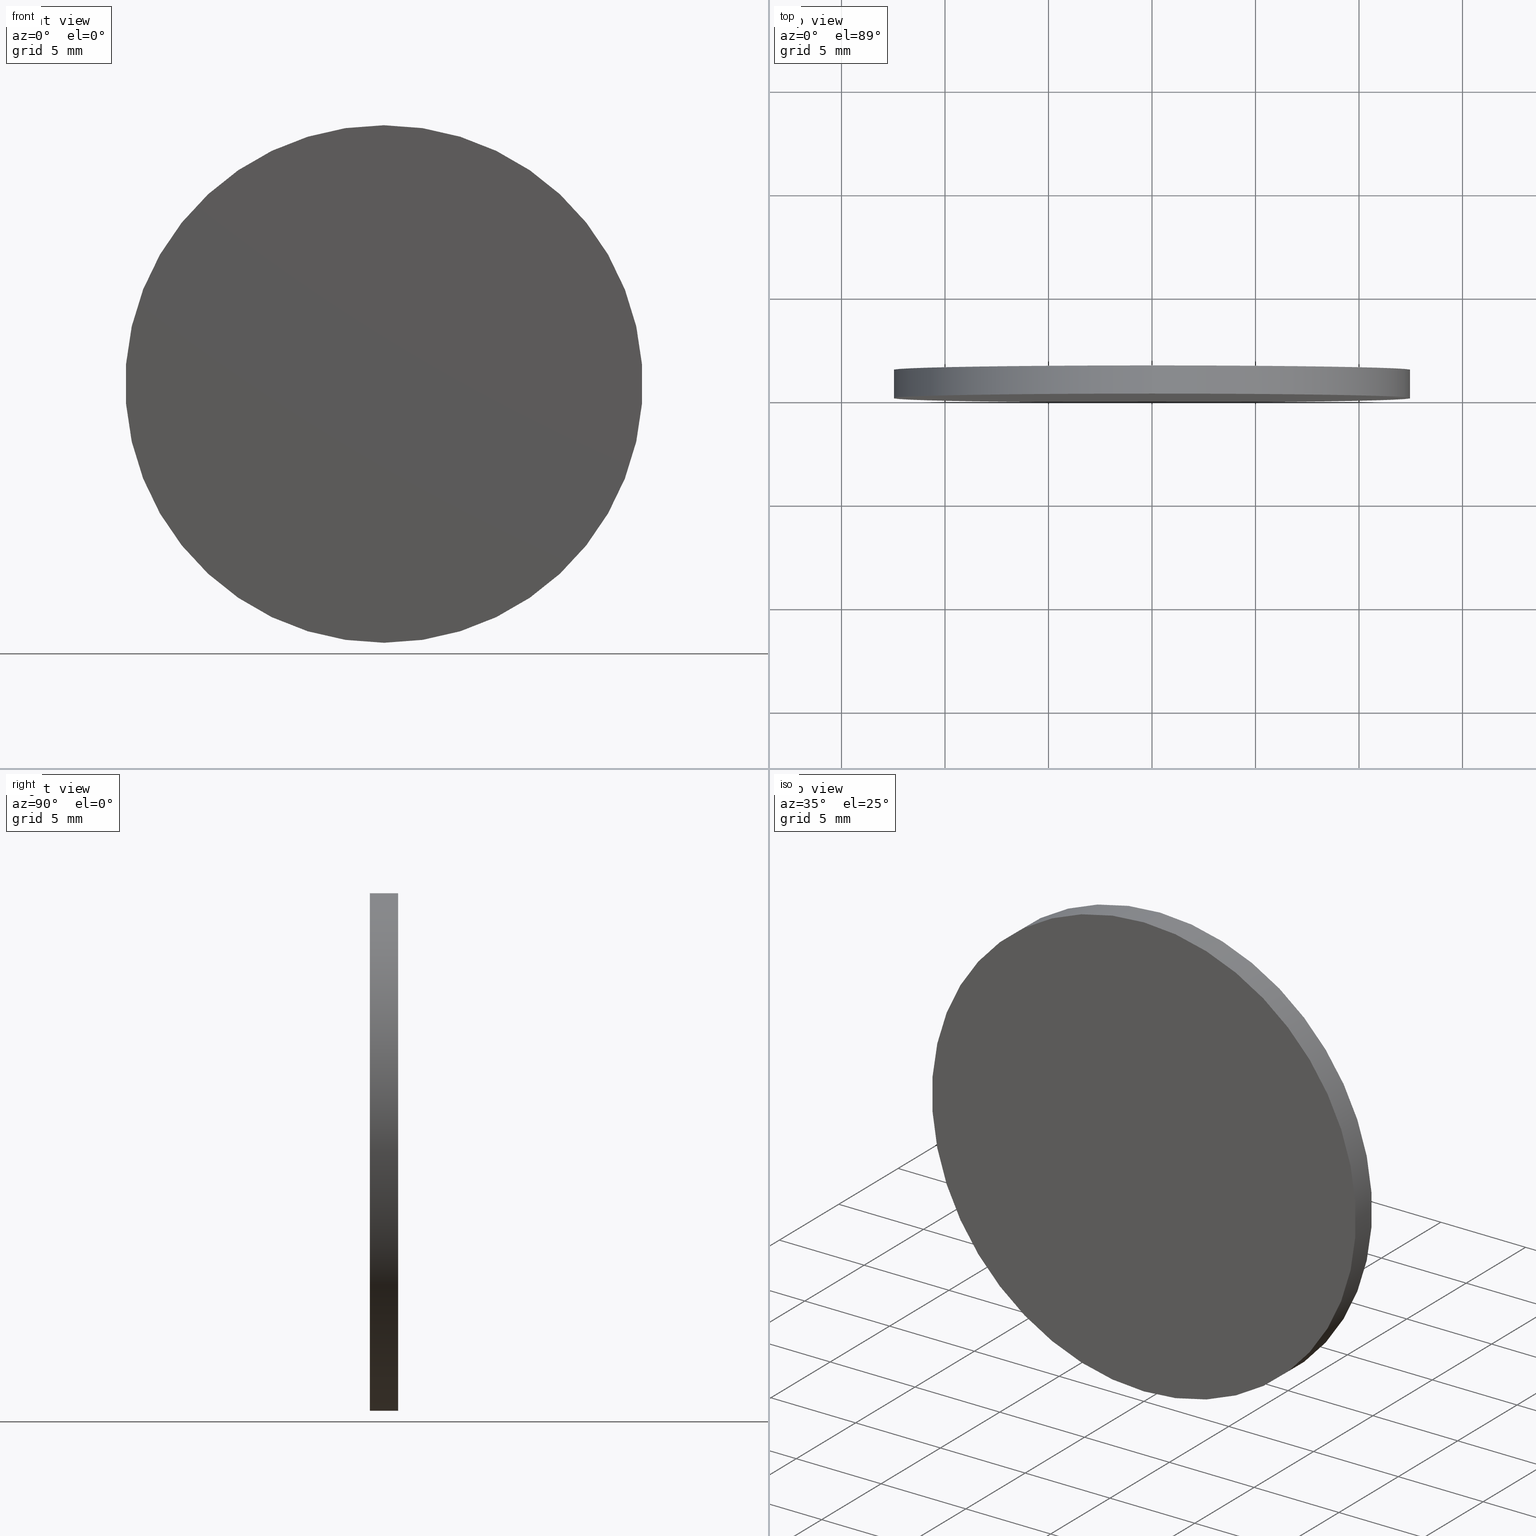
[diagram: canonical four-view strip — front | top / right | iso, engineering-drawing reading convention]
A machine part, canonical four-view strip (front | top / right | iso — engineering-drawing reading convention). The complete STEP part file that produces these views, byte-faithful:
ISO-10303-21;
HEADER;
FILE_DESCRIPTION (( 'STEP AP214' ),
    '1' );
FILE_NAME ('248584.STEP',
    '2019-08-06T02:51:28',
    ( 'user' ),
    ( '΢���й�' ),
    'SwSTEP 2.0',
    'SolidWorks 2016',
    '' );
FILE_SCHEMA (( 'AUTOMOTIVE_DESIGN' ));
ENDSEC;

DATA;
#1 = APPLICATION_PROTOCOL_DEFINITION ( 'draft international standard', 'automotive_design', 1998, #71 ) ;
#2 = PRODUCT_DEFINITION_CONTEXT ( 'detailed design', #71, 'design' ) ;
#3 = PRODUCT_RELATED_PRODUCT_CATEGORY ( 'part', '', ( #59 ) ) ;
#4 =( NAMED_UNIT ( * ) PLANE_ANGLE_UNIT ( ) SI_UNIT ( $, .RADIAN. ) );
#5 = CARTESIAN_POINT ( 'NONE',  ( 0.0000000000000000000, 1.360000000000000100, 0.0000000000000000000 ) ) ;
#6 = AXIS2_PLACEMENT_3D ( 'NONE', #132, #61, #135 ) ;
#7 = EDGE_LOOP ( 'NONE', ( #63, #94 ) ) ;
#8 = FACE_OUTER_BOUND ( 'NONE', #32, .T. ) ;
#9 = AXIS2_PLACEMENT_3D ( 'NONE', #92, #66, #116 ) ;
#10 =( NAMED_UNIT ( * ) PLANE_ANGLE_UNIT ( ) SI_UNIT ( $, .RADIAN. ) );
#11 = ORIENTED_EDGE ( 'NONE', *, *, #133, .F. ) ;
#12 = LINE ( 'NONE', #37, #51 ) ;
#13 = ORIENTED_EDGE ( 'NONE', *, *, #111, .F. ) ;
#14 = MECHANICAL_DESIGN_GEOMETRIC_PRESENTATION_REPRESENTATION (  '', ( #76 ), #46 ) ;
#15 = ORIENTED_EDGE ( 'NONE', *, *, #86, .F. ) ;
#16 = UNCERTAINTY_MEASURE_WITH_UNIT (LENGTH_MEASURE( 1.000000000000000100E-005 ), #58, 'distance_accuracy_value', 'NONE');
#17 = ADVANCED_FACE ( 'NONE', ( #53 ), #67, .F. ) ;
#18 = MANIFOLD_SOLID_BREP ( '͹̨-����1', #75 ) ;
#19 = DIRECTION ( 'NONE',  ( -0.0000000000000000000, -1.000000000000000000, -0.0000000000000000000 ) ) ;
#20 = DIRECTION ( 'NONE',  ( 0.0000000000000000000, 0.0000000000000000000, -1.000000000000000000 ) ) ;
#21 = EDGE_CURVE ( 'NONE', #60, #90, #22, .T. ) ;
#22 = LINE ( 'NONE', #78, #54 ) ;
#23 = SURFACE_SIDE_STYLE ('',( #107 ) ) ;
#24 = CIRCLE ( 'NONE', #40, 12.50000000000000000 ) ;
#25 = CARTESIAN_POINT ( 'NONE',  ( 0.0000000000000000000, 1.360000000000000100, 0.0000000000000000000 ) ) ;
#26 = SURFACE_STYLE_USAGE ( .BOTH. , #23 ) ;
#27 = STYLED_ITEM ( 'NONE', ( #39 ), #110 ) ;
#28 = CARTESIAN_POINT ( 'NONE',  ( 0.0000000000000000000, 1.360000000000000100, -12.50000000000000000 ) ) ;
#29 = DIRECTION ( 'NONE',  ( 0.0000000000000000000, 1.000000000000000000, 0.0000000000000000000 ) ) ;
#30 = VERTEX_POINT ( 'NONE', #103 ) ;
#31 = ORIENTED_EDGE ( 'NONE', *, *, #68, .F. ) ;
#32 = EDGE_LOOP ( 'NONE', ( #15, #102, #41, #48 ) ) ;
#33 = COLOUR_RGB ( '',1.000000000000000000, 1.000000000000000000, 1.000000000000000000 ) ;
#34 =( LENGTH_UNIT ( ) NAMED_UNIT ( * ) SI_UNIT ( .MILLI., .METRE. ) );
#35 = CARTESIAN_POINT ( 'NONE',  ( 0.0000000000000000000, 0.0000000000000000000, 0.0000000000000000000 ) ) ;
#36 = APPLICATION_CONTEXT ( 'automotive_design' ) ;
#37 = CARTESIAN_POINT ( 'NONE',  ( 1.530808498934191500E-015, 1.360000000000000100, 12.50000000000000000 ) ) ;
#38 = AXIS2_PLACEMENT_3D ( 'NONE', #112, #29, #101 ) ;
#39 = PRESENTATION_STYLE_ASSIGNMENT (( #45 ) ) ;
#40 = AXIS2_PLACEMENT_3D ( 'NONE', #47, #42, #129 ) ;
#41 = ORIENTED_EDGE ( 'NONE', *, *, #21, .T. ) ;
#42 = DIRECTION ( 'NONE',  ( 0.0000000000000000000, 1.000000000000000000, 0.0000000000000000000 ) ) ;
#43 = FACE_OUTER_BOUND ( 'NONE', #84, .T. ) ;
#44 = PRODUCT_CONTEXT ( 'NONE', #36, 'mechanical' ) ;
#45 = SURFACE_STYLE_USAGE ( .BOTH. , #131 ) ;
#46 =( GEOMETRIC_REPRESENTATION_CONTEXT ( 3 ) GLOBAL_UNCERTAINTY_ASSIGNED_CONTEXT ( ( #104 ) ) GLOBAL_UNIT_ASSIGNED_CONTEXT ( ( #77, #10, #98 ) ) REPRESENTATION_CONTEXT ( 'NONE', 'WORKASPACE' ) );
#47 = CARTESIAN_POINT ( 'NONE',  ( 0.0000000000000000000, 1.360000000000000100, 0.0000000000000000000 ) ) ;
#48 = ORIENTED_EDGE ( 'NONE', *, *, #133, .T. ) ;
#49 = FACE_OUTER_BOUND ( 'NONE', #7, .T. ) ;
#50 = FILL_AREA_STYLE ('',( #69 ) ) ;
#51 = VECTOR ( 'NONE', #134, 1000.000000000000000 ) ;
#52 = PRODUCT_DEFINITION_SHAPE ( 'NONE', 'NONE',  #127 ) ;
#53 = FACE_OUTER_BOUND ( 'NONE', #128, .T. ) ;
#54 = VECTOR ( 'NONE', #108, 1000.000000000000000 ) ;
#55 = DIRECTION ( 'NONE',  ( 0.0000000000000000000, -0.0000000000000000000, 1.000000000000000000 ) ) ;
#56 = FILL_AREA_STYLE ('',( #130 ) ) ;
#57 = DIRECTION ( 'NONE',  ( 1.000000000000000000, 0.0000000000000000000, 0.0000000000000000000 ) ) ;
#58 =( LENGTH_UNIT ( ) NAMED_UNIT ( * ) SI_UNIT ( .MILLI., .METRE. ) );
#59 = PRODUCT ( '248584', '248584', '', ( #44 ) ) ;
#60 = VERTEX_POINT ( 'NONE', #28 ) ;
#61 = DIRECTION ( 'NONE',  ( 0.0000000000000000000, 1.000000000000000000, 0.0000000000000000000 ) ) ;
#62 = AXIS2_PLACEMENT_3D ( 'NONE', #73, #87, #20 ) ;
#63 = ORIENTED_EDGE ( 'NONE', *, *, #118, .T. ) ;
#64 = CIRCLE ( 'NONE', #38, 12.50000000000000000 ) ;
#65 = ADVANCED_FACE ( 'NONE', ( #43 ), #88, .T. ) ;
#66 = DIRECTION ( 'NONE',  ( 0.0000000000000000000, 1.000000000000000000, 0.0000000000000000000 ) ) ;
#67 = PLANE ( 'NONE',  #9 ) ;
#68 = EDGE_CURVE ( 'NONE', #126, #90, #64, .T. ) ;
#69 = FILL_AREA_STYLE_COLOUR ( '', #79 ) ;
#70 = DIRECTION ( 'NONE',  ( 0.0000000000000000000, 0.0000000000000000000, 1.000000000000000000 ) ) ;
#71 = APPLICATION_CONTEXT ( 'automotive_design' ) ;
#72 =( NAMED_UNIT ( * ) SI_UNIT ( $, .STERADIAN. ) SOLID_ANGLE_UNIT ( ) );
#73 = CARTESIAN_POINT ( 'NONE',  ( 0.0000000000000000000, 1.360000000000000100, 0.0000000000000000000 ) ) ;
#74 = DIRECTION ( 'NONE',  ( 0.0000000000000000000, 0.0000000000000000000, -1.000000000000000000 ) ) ;
#75 = CLOSED_SHELL ( 'NONE', ( #65, #125, #137, #17 ) ) ;
#76 = STYLED_ITEM ( 'NONE', ( #121 ), #18 ) ;
#77 =( LENGTH_UNIT ( ) NAMED_UNIT ( * ) SI_UNIT ( .MILLI., .METRE. ) );
#78 = CARTESIAN_POINT ( 'NONE',  ( 0.0000000000000000000, 1.360000000000000100, -12.50000000000000000 ) ) ;
#79 = COLOUR_RGB ( '',1.000000000000000000, 1.000000000000000000, 1.000000000000000000 ) ;
#80 = SHAPE_DEFINITION_REPRESENTATION ( #52, #110 ) ;
#81 = PRESENTATION_LAYER_ASSIGNMENT (  '', '', ( #27 ) ) ;
#82 = APPLICATION_PROTOCOL_DEFINITION ( 'draft international standard', 'automotive_design', 1998, #36 ) ;
#83 = CARTESIAN_POINT ( 'NONE',  ( 0.0000000000000000000, 0.0000000000000000000, 0.0000000000000000000 ) ) ;
#84 = EDGE_LOOP ( 'NONE', ( #13, #124, #113, #120 ) ) ;
#85 = CARTESIAN_POINT ( 'NONE',  ( 0.0000000000000000000, 0.0000000000000000000, -12.50000000000000000 ) ) ;
#86 = EDGE_CURVE ( 'NONE', #30, #126, #12, .T. ) ;
#87 = DIRECTION ( 'NONE',  ( -0.0000000000000000000, -1.000000000000000000, -0.0000000000000000000 ) ) ;
#88 = CYLINDRICAL_SURFACE ( 'NONE', #62, 12.50000000000000000 ) ;
#89 = MECHANICAL_DESIGN_GEOMETRIC_PRESENTATION_REPRESENTATION (  '', ( #27 ), #100 ) ;
#90 = VERTEX_POINT ( 'NONE', #85 ) ;
#91 = CIRCLE ( 'NONE', #6, 12.50000000000000000 ) ;
#92 = CARTESIAN_POINT ( 'NONE',  ( 0.0000000000000000000, 0.0000000000000000000, 0.0000000000000000000 ) ) ;
#93 = PRESENTATION_LAYER_ASSIGNMENT (  '', '', ( #76 ) ) ;
#94 = ORIENTED_EDGE ( 'NONE', *, *, #111, .T. ) ;
#95 =( NAMED_UNIT ( * ) SI_UNIT ( $, .STERADIAN. ) SOLID_ANGLE_UNIT ( ) );
#96 = AXIS2_PLACEMENT_3D ( 'NONE', #25, #109, #55 ) ;
#97 = PLANE ( 'NONE',  #96 ) ;
#98 =( NAMED_UNIT ( * ) SI_UNIT ( $, .STERADIAN. ) SOLID_ANGLE_UNIT ( ) );
#99 = DIRECTION ( 'NONE',  ( 0.0000000000000000000, 0.0000000000000000000, 1.000000000000000000 ) ) ;
#100 =( GEOMETRIC_REPRESENTATION_CONTEXT ( 3 ) GLOBAL_UNCERTAINTY_ASSIGNED_CONTEXT ( ( #16 ) ) GLOBAL_UNIT_ASSIGNED_CONTEXT ( ( #58, #4, #72 ) ) REPRESENTATION_CONTEXT ( 'NONE', 'WORKASPACE' ) );
#101 = DIRECTION ( 'NONE',  ( 0.0000000000000000000, 0.0000000000000000000, 1.000000000000000000 ) ) ;
#102 = ORIENTED_EDGE ( 'NONE', *, *, #118, .F. ) ;
#103 = CARTESIAN_POINT ( 'NONE',  ( 1.530808498934191500E-015, 1.360000000000000100, 12.50000000000000000 ) ) ;
#104 = UNCERTAINTY_MEASURE_WITH_UNIT (LENGTH_MEASURE( 1.000000000000000100E-005 ), #77, 'distance_accuracy_value', 'NONE');
#105 = AXIS2_PLACEMENT_3D ( 'NONE', #83, #139, #70 ) ;
#106 = UNCERTAINTY_MEASURE_WITH_UNIT (LENGTH_MEASURE( 1.000000000000000100E-005 ), #34, 'distance_accuracy_value', 'NONE');
#107 = SURFACE_STYLE_FILL_AREA ( #50 ) ;
#108 = DIRECTION ( 'NONE',  ( -0.0000000000000000000, -1.000000000000000000, -0.0000000000000000000 ) ) ;
#109 = DIRECTION ( 'NONE',  ( 0.0000000000000000000, 1.000000000000000000, 0.0000000000000000000 ) ) ;
#110 = ADVANCED_BREP_SHAPE_REPRESENTATION ( '248584', ( #18, #123 ), #138 ) ;
#111 = EDGE_CURVE ( 'NONE', #30, #60, #91, .T. ) ;
#112 = CARTESIAN_POINT ( 'NONE',  ( 0.0000000000000000000, 0.0000000000000000000, 0.0000000000000000000 ) ) ;
#113 = ORIENTED_EDGE ( 'NONE', *, *, #68, .T. ) ;
#114 = SURFACE_STYLE_FILL_AREA ( #56 ) ;
#115 = CIRCLE ( 'NONE', #105, 12.50000000000000000 ) ;
#116 = DIRECTION ( 'NONE',  ( 0.0000000000000000000, -0.0000000000000000000, 1.000000000000000000 ) ) ;
#117 = AXIS2_PLACEMENT_3D ( 'NONE', #5, #19, #74 ) ;
#118 = EDGE_CURVE ( 'NONE', #60, #30, #24, .T. ) ;
#119 =( NAMED_UNIT ( * ) PLANE_ANGLE_UNIT ( ) SI_UNIT ( $, .RADIAN. ) );
#120 = ORIENTED_EDGE ( 'NONE', *, *, #21, .F. ) ;
#121 = PRESENTATION_STYLE_ASSIGNMENT (( #26 ) ) ;
#122 = CARTESIAN_POINT ( 'NONE',  ( 1.530808498934191500E-015, 0.0000000000000000000, 12.50000000000000000 ) ) ;
#123 = AXIS2_PLACEMENT_3D ( 'NONE', #35, #99, #57 ) ;
#124 = ORIENTED_EDGE ( 'NONE', *, *, #86, .T. ) ;
#125 = ADVANCED_FACE ( 'NONE', ( #8 ), #140, .T. ) ;
#126 = VERTEX_POINT ( 'NONE', #122 ) ;
#127 = PRODUCT_DEFINITION ( 'δ֪', '', #136, #2 ) ;
#128 = EDGE_LOOP ( 'NONE', ( #11, #31 ) ) ;
#129 = DIRECTION ( 'NONE',  ( 0.0000000000000000000, 0.0000000000000000000, 1.000000000000000000 ) ) ;
#130 = FILL_AREA_STYLE_COLOUR ( '', #33 ) ;
#131 = SURFACE_SIDE_STYLE ('',( #114 ) ) ;
#132 = CARTESIAN_POINT ( 'NONE',  ( 0.0000000000000000000, 1.360000000000000100, 0.0000000000000000000 ) ) ;
#133 = EDGE_CURVE ( 'NONE', #90, #126, #115, .T. ) ;
#134 = DIRECTION ( 'NONE',  ( -0.0000000000000000000, -1.000000000000000000, -0.0000000000000000000 ) ) ;
#135 = DIRECTION ( 'NONE',  ( 0.0000000000000000000, 0.0000000000000000000, 1.000000000000000000 ) ) ;
#136 = PRODUCT_DEFINITION_FORMATION_WITH_SPECIFIED_SOURCE ( '�κ�', '', #59, .NOT_KNOWN. ) ;
#137 = ADVANCED_FACE ( 'NONE', ( #49 ), #97, .T. ) ;
#138 =( GEOMETRIC_REPRESENTATION_CONTEXT ( 3 ) GLOBAL_UNCERTAINTY_ASSIGNED_CONTEXT ( ( #106 ) ) GLOBAL_UNIT_ASSIGNED_CONTEXT ( ( #34, #119, #95 ) ) REPRESENTATION_CONTEXT ( 'NONE', 'WORKASPACE' ) );
#139 = DIRECTION ( 'NONE',  ( 0.0000000000000000000, 1.000000000000000000, 0.0000000000000000000 ) ) ;
#140 = CYLINDRICAL_SURFACE ( 'NONE', #117, 12.50000000000000000 ) ;
ENDSEC;
END-ISO-10303-21;
